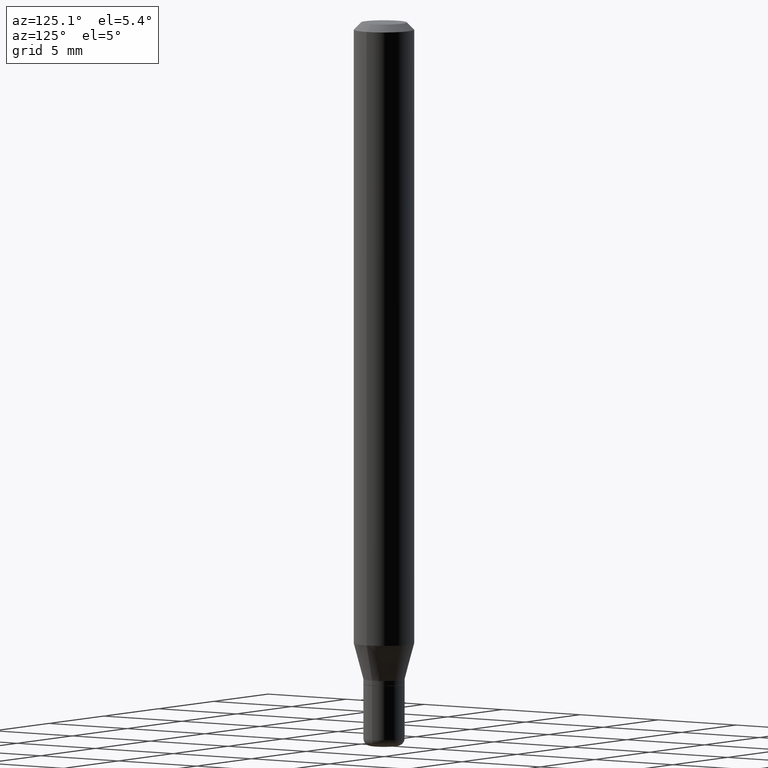
[diagram: clean part render]
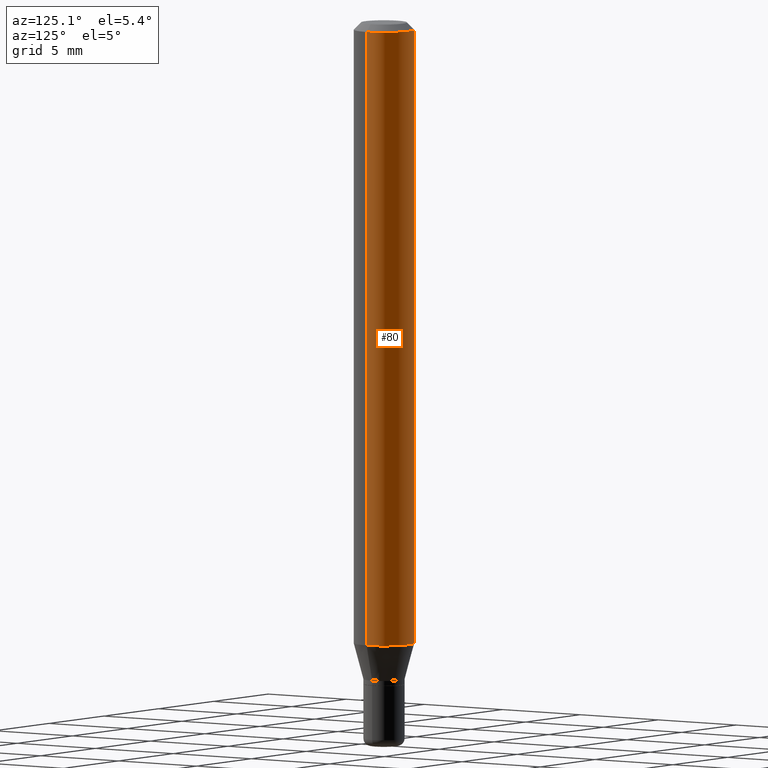
[diagram: same view with one face highlighted and labeled with its STEP entity id]
A machine part, auxiliary view. The second image highlights one B-rep face of the part: STEP entity #80.
In plain terms, the highlighted cylindrical surface (edge-blend (fillet) strip) has radius 1.5875 mm, axis along (-0, 0, 1).
Its self-contained STEP definition (entity closure, byte-faithful):
#5 = CIRCLE ( 'NONE', #23, 0.06250000000000000000 ) ;
#23 = AXIS2_PLACEMENT_3D ( 'NONE', #484, #133, #51 ) ;
#26 = DIRECTION ( 'NONE',  ( 1.000000000000000000, -6.982962677686262766E-15, 0.000000000000000000 ) ) ;
#31 = LINE ( 'NONE', #150, #358 ) ;
#51 = DIRECTION ( 'NONE',  ( 1.000000000000000000, -6.982962677686266711E-15, 0.000000000000000000 ) ) ;
#58 = EDGE_CURVE ( 'NONE', #216, #114, #5, .T. ) ;
#62 = CIRCLE ( 'NONE', #129, 0.06250000000000000000 ) ;
#71 = CARTESIAN_POINT ( 'NONE',  ( 0.06250000000000000000, -4.888073874380378612E-16, -0.01499999999999970281 ) ) ;
#72 = ORIENTED_EDGE ( 'NONE', *, *, #101, .T. ) ;
#80 = ADVANCED_FACE ( 'NONE', ( #130 ), #207, .T. ) ;
#101 = EDGE_CURVE ( 'NONE', #259, #127, #62, .T. ) ;
#108 = ORIENTED_EDGE ( 'NONE', *, *, #219, .T. ) ;
#114 = VERTEX_POINT ( 'NONE', #218 ) ;
#127 = VERTEX_POINT ( 'NONE', #149 ) ;
#129 = AXIS2_PLACEMENT_3D ( 'NONE', #296, #220, #26 ) ;
#130 = FACE_OUTER_BOUND ( 'NONE', #426, .T. ) ;
#133 = DIRECTION ( 'NONE',  ( -2.445468806185136597E-29, 3.491481338843145583E-15, 1.000000000000000000 ) ) ;
#149 = CARTESIAN_POINT ( 'NONE',  ( -0.06250000000000000000, -4.050700658649477240E-15, -1.287358983848622573 ) ) ;
#150 = CARTESIAN_POINT ( 'NONE',  ( -0.06250000000000000000, 4.440892098500626162E-16, -3.074334431409316114E-30 ) ) ;
#155 = AXIS2_PLACEMENT_3D ( 'NONE', #289, #439, #446 ) ;
#192 = CARTESIAN_POINT ( 'NONE',  ( 0.06250000000000000000, -4.931225035854931526E-15, -1.287358983848622573 ) ) ;
#207 = CYLINDRICAL_SURFACE ( 'NONE', #155, 0.06250000000000000000 ) ;
#216 = VERTEX_POINT ( 'NONE', #71 ) ;
#218 = CARTESIAN_POINT ( 'NONE',  ( -0.06250000000000000000, -1.829491834441030260E-15, -0.01499999999999970281 ) ) ;
#219 = EDGE_CURVE ( 'NONE', #127, #114, #31, .T. ) ;
#220 = DIRECTION ( 'NONE',  ( -2.445468806185136597E-29, 3.491481338843145583E-15, 1.000000000000000000 ) ) ;
#259 = VERTEX_POINT ( 'NONE', #192 ) ;
#289 = CARTESIAN_POINT ( 'NONE',  ( 0.000000000000000000, 0.000000000000000000, 0.000000000000000000 ) ) ;
#296 = CARTESIAN_POINT ( 'NONE',  ( 3.148196237364001258E-29, -4.494789868499539856E-15, -1.287358983848622573 ) ) ;
#335 = ORIENTED_EDGE ( 'NONE', *, *, #408, .F. ) ;
#355 = ORIENTED_EDGE ( 'NONE', *, *, #58, .F. ) ;
#356 = DIRECTION ( 'NONE',  ( -2.445468806185136877E-29, 3.491481338843145188E-15, 1.000000000000000000 ) ) ;
#358 = VECTOR ( 'NONE', #384, 39.37007874015748143 ) ;
#384 = DIRECTION ( 'NONE',  ( -2.445468806185136877E-29, 3.491481338843145188E-15, 1.000000000000000000 ) ) ;
#401 = CARTESIAN_POINT ( 'NONE',  ( 0.06250000000000000000, -4.364351673553916694E-16, 3.047610484872459871E-30 ) ) ;
#408 = EDGE_CURVE ( 'NONE', #259, #216, #488, .T. ) ;
#426 = EDGE_LOOP ( 'NONE', ( #72, #108, #355, #335 ) ) ;
#439 = DIRECTION ( 'NONE',  ( -2.445468806185136597E-29, 3.491481338843145583E-15, 1.000000000000000000 ) ) ;
#446 = DIRECTION ( 'NONE',  ( 1.000000000000000000, -6.982962677686266711E-15, 4.876176775795935793E-29 ) ) ;
#484 = CARTESIAN_POINT ( 'NONE',  ( 3.668203209277632395E-31, -5.237222008264614861E-17, -0.01499999999999970281 ) ) ;
#488 = LINE ( 'NONE', #401, #503 ) ;
#503 = VECTOR ( 'NONE', #356, 39.37007874015748143 ) ;